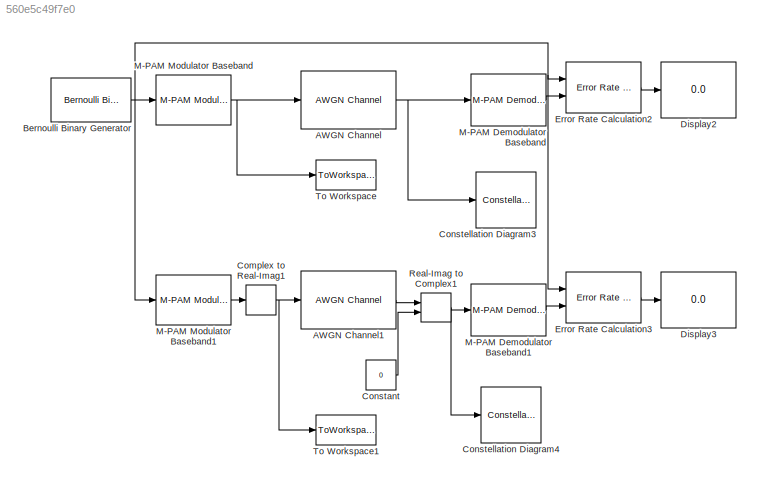
MODEL slx_560e5c49f7e0
KIND model
CONFIG AbsTol = auto
CONFIG FixedStep = auto
CONFIG InitFcn = clear\nBitRate = 4e6;\nSamplePerFrame = 4000;\nSNR = 10;\nM = 4;\nl = log2(M);\n\n% 实数通过AWGN\nEsN0 = SNR - 10 * log10(2);\nEbN0 = EsN0 - 10 * log10(l);\nBER1Theory = berawgn(EbN0, 'pam', M);\n\n% 复数通过AWGN\nEsN0 = SNR;\nEbN0 = EsN0 - 10 * log10(l);\nBER2Theory = berawgn(EbN0, 'pam', M);
CONFIG MaxStep = auto
CONFIG MinStep = auto
CONFIG RelTol = 1e-3
CONFIG SampleTimeConstraint = Unconstrained
CONFIG Solver = VariableStepDiscrete
CONFIG SolverMode = Auto
CONFIG SolverName = VariableStepDiscrete
CONFIG StartTime = 0.0
CONFIG StopTime = 1
BLOCK [Reference] AWGN Channel  REF=commchan3/AWGN
Channel
  Ports = [1, 1]
  SourceBlock = commchan3/AWGN\nChannel
  SourceType = AWGN Channel
  UserDataPersistent = on
BLOCK [Reference] AWGN Channel1  REF=commchan3/AWGN
Channel
  Ports = [1, 1]
  SourceBlock = commchan3/AWGN\nChannel
  SourceType = AWGN Channel
  UserDataPersistent = on
BLOCK [Reference] Bernoulli Binary Generator  REF=commrandsrc2/Bernoulli Binary
Generator
  Ports = [0, 1]
  SourceBlock = commrandsrc2/Bernoulli Binary\nGenerator
  SourceType = Bernoulli Binary Generator
BLOCK [ComplexToRealImag] Complex to Real-Imag1
  Output = Real
  Ports = [1, 1]
BLOCK [Constant] Constant
  Value = 0
BLOCK [ConstellationDiagram] Constellation Diagram3
  Ports = [1]
  ScopeSpecificationString = comm.scopes.ConstellationDiagramBlockCfg('CurrentConfiguration', extmgr.ConfigurationSet(extmgr.Configuration('Core','General UI',true,'FigureColor',[1 1 1]),extmgr.Configuration('Core','Source UI',true),extmgr.Configuration('Sources','WiredSimulink',true),extmgr.Configuration('Sources','Simulink',false),extmgr.Configuration('Sources','SimulinkEvent',false),extmgr.Configuration('Sources','File',fa...<+2064ch>
BLOCK [ConstellationDiagram] Constellation Diagram4
  Ports = [1]
  ScopeSpecificationString = comm.scopes.ConstellationDiagramBlockCfg('CurrentConfiguration', extmgr.ConfigurationSet(extmgr.Configuration('Core','General UI',true,'FigureColor',[1 1 1]),extmgr.Configuration('Core','Source UI',true),extmgr.Configuration('Sources','WiredSimulink',true),extmgr.Configuration('Sources','Simulink',false),extmgr.Configuration('Sources','SimulinkEvent',false),extmgr.Configuration('Sources','Workspac...<+2064ch>
BLOCK [Display] Display2
  Decimation = 1
  Ports = [1]
BLOCK [Display] Display3
  Decimation = 1
  Ports = [1]
BLOCK [Reference] Error Rate Calculation2  REF=commsink2/Error Rate
Calculation
  Ports = [2, 1]
  SourceBlock = commsink2/Error Rate\nCalculation
  SourceType = Error Rate Calculation
BLOCK [Reference] Error Rate Calculation3  REF=commsink2/Error Rate
Calculation
  Ports = [2, 1]
  SourceBlock = commsink2/Error Rate\nCalculation
  SourceType = Error Rate Calculation
BLOCK [Reference] M-PAM Demodulator Baseband  REF=commdigbbndam3/M-PAM
Demodulator
Baseband
  Ports = [1, 1]
  SourceBlock = commdigbbndam3/M-PAM\nDemodulator\nBaseband
  SourceType = M-PAM Demodulator Baseband
BLOCK [Reference] M-PAM Demodulator Baseband1  REF=commdigbbndam3/M-PAM
Demodulator
Baseband
  Ports = [1, 1]
  SourceBlock = commdigbbndam3/M-PAM\nDemodulator\nBaseband
  SourceType = M-PAM Demodulator Baseband
BLOCK [Reference] M-PAM Modulator Baseband  REF=commdigbbndam3/M-PAM
Modulator
Baseband
  Ports = [1, 1]
  SourceBlock = commdigbbndam3/M-PAM\nModulator\nBaseband
  SourceType = M-PAM Modulator Baseband
BLOCK [Reference] M-PAM Modulator Baseband1  REF=commdigbbndam3/M-PAM
Modulator
Baseband
  Ports = [1, 1]
  SourceBlock = commdigbbndam3/M-PAM\nModulator\nBaseband
  SourceType = M-PAM Modulator Baseband
BLOCK [RealImagToComplex] Real-Imag to Complex1
  Ports = [2, 1]
BLOCK [ToWorkspace] To Workspace
  FixptAsFi = on
  MaxDataPoints = inf
  Ports = [1]
  SampleTime = -1
  Save2DSignal = 2-D array (concatenate along first dimension)
  VariableName = g1
BLOCK [ToWorkspace] To Workspace1
  FixptAsFi = on
  MaxDataPoints = inf
  Ports = [1]
  SampleTime = -1
  Save2DSignal = 2-D array (concatenate along first dimension)
  VariableName = g2
ANNOTATION (root): 链路2
ANNOTATION (root): 链路1
LINE AWGN Channel1:1 -> Real-Imag to Complex1:1
NET AWGN Channel:1 -> Constellation Diagram3:1, M-PAM Demodulator Baseband:1
NET Bernoulli Binary Generator:1 -> Error Rate Calculation2:1, Error Rate Calculation3:1, M-PAM Modulator Baseband1:1, M-PAM Modulator Baseband:1
NET Complex to Real-Imag1:1 -> AWGN Channel1:1, To Workspace1:1
LINE Constant:1 -> Real-Imag to Complex1:2
LINE Error Rate Calculation2:1 -> Display2:1
LINE Error Rate Calculation3:1 -> Display3:1
LINE M-PAM Demodulator Baseband1:1 -> Error Rate Calculation3:2
LINE M-PAM Demodulator Baseband:1 -> Error Rate Calculation2:2
LINE M-PAM Modulator Baseband1:1 -> Complex to Real-Imag1:1
NET M-PAM Modulator Baseband:1 -> AWGN Channel:1, To Workspace:1
NET Real-Imag to Complex1:1 -> Constellation Diagram4:1, M-PAM Demodulator Baseband1:1
note: NET lines group one-source signal fan-out (src -> all destinations, sorted); 1:1 wires keep LINE
